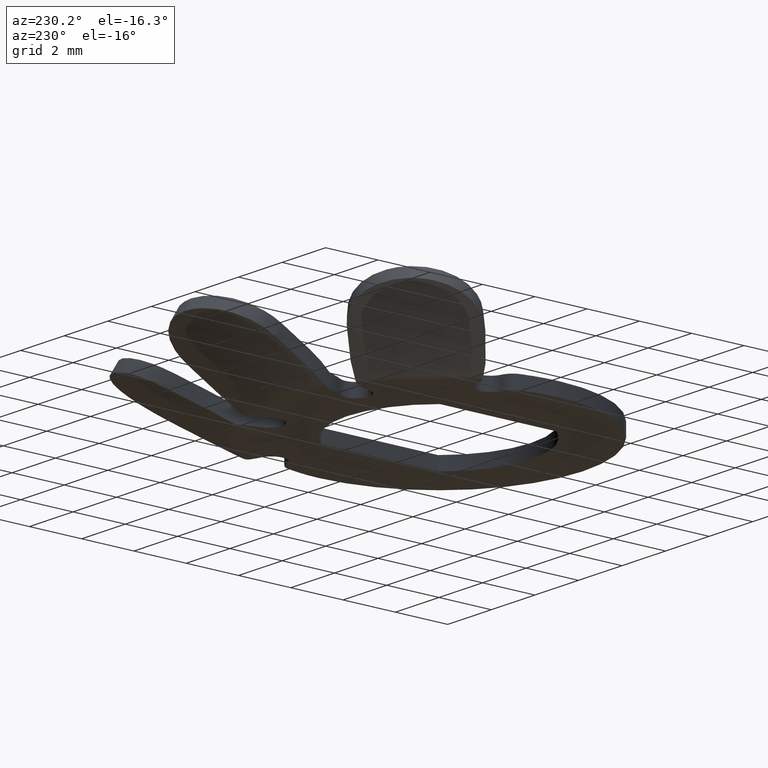
[diagram: clean part render]
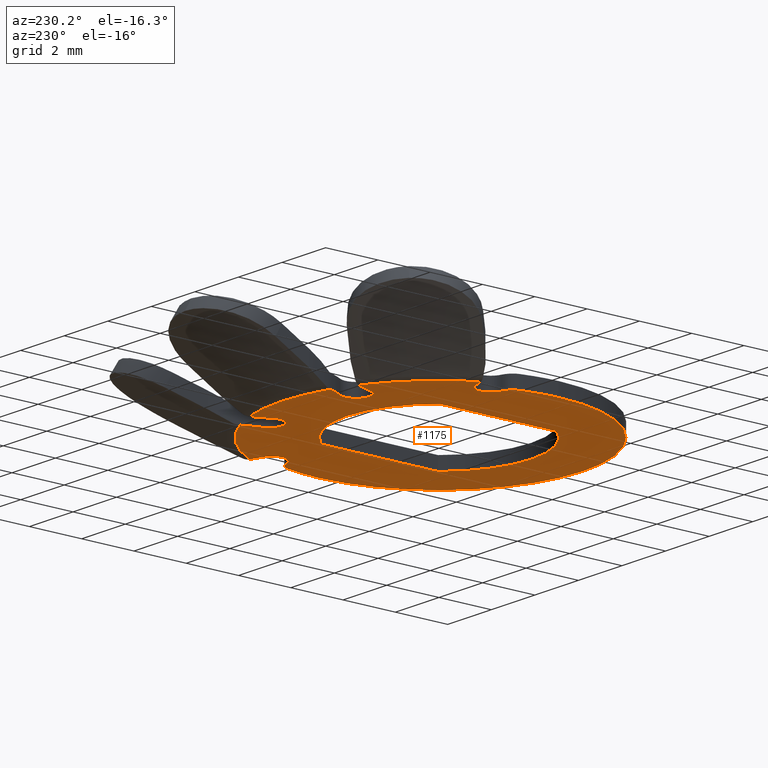
[diagram: same view with one face highlighted and labeled with its STEP entity id]
A machine part, auxiliary view. The second image highlights one B-rep face of the part: STEP entity #1175.
In plain terms, the highlighted planar face has unit normal (0, 0, 1).
Its self-contained STEP definition (entity closure, byte-faithful):
#1 = CIRCLE ( 'NONE', #484, 0.5000000000000000000 ) ;
#28 = DIRECTION ( 'NONE',  ( 1.000000000000000000, 0.0000000000000000000, 0.0000000000000000000 ) ) ;
#43 = CARTESIAN_POINT ( 'NONE',  ( 2.000000000000000900, 4.828427124746181000, 0.0000000000000000000 ) ) ;
#47 = EDGE_CURVE ( 'NONE', #1611, #213, #1660, .T. ) ;
#48 = CARTESIAN_POINT ( 'NONE',  ( 2.485153603136834600, 4.707489201151687100, 0.0000000000000000000 ) ) ;
#53 = CIRCLE ( 'NONE', #239, 0.5000000000000002200 ) ;
#57 = AXIS2_PLACEMENT_3D ( 'NONE', #1031, #241, #1167 ) ;
#73 = LINE ( 'NONE', #1075, #1362 ) ;
#83 = CARTESIAN_POINT ( 'NONE',  ( 0.0000000000000000000, 0.0000000000000000000, 0.0000000000000000000 ) ) ;
#122 = VERTEX_POINT ( 'NONE', #1547 ) ;
#130 = CARTESIAN_POINT ( 'NONE',  ( 1.500000000000000900, 4.828427124746181000, 0.0000000000000000000 ) ) ;
#133 = DIRECTION ( 'NONE',  ( 0.0000000000000000000, 0.0000000000000000000, -1.000000000000000000 ) ) ;
#144 = ORIENTED_EDGE ( 'NONE', *, *, #1695, .T. ) ;
#166 = VERTEX_POINT ( 'NONE', #279 ) ;
#168 = CARTESIAN_POINT ( 'NONE',  ( -5.297832606445729700, 2.816552799803404600, 0.0000000000000000000 ) ) ;
#181 = CIRCLE ( 'NONE', #1429, 3.000000000000000000 ) ;
#182 = AXIS2_PLACEMENT_3D ( 'NONE', #1173, #650, #1732 ) ;
#184 = DIRECTION ( 'NONE',  ( 1.000000000000000000, 0.0000000000000000000, 0.0000000000000000000 ) ) ;
#188 = ORIENTED_EDGE ( 'NONE', *, *, #625, .T. ) ;
#207 = CIRCLE ( 'NONE', #1219, 0.5000000000000004400 ) ;
#213 = VERTEX_POINT ( 'NONE', #168 ) ;
#222 = CIRCLE ( 'NONE', #968, 0.5000000000000004400 ) ;
#224 = AXIS2_PLACEMENT_3D ( 'NONE', #389, #1257, #506 ) ;
#229 = CARTESIAN_POINT ( 'NONE',  ( -1.571428571428572100, 5.085966501565037500, 0.0000000000000000000 ) ) ;
#231 = EDGE_CURVE ( 'NONE', #1433, #1227, #826, .T. ) ;
#232 = VERTEX_POINT ( 'NONE', #130 ) ;
#239 = AXIS2_PLACEMENT_3D ( 'NONE', #250, #1179, #381 ) ;
#241 = DIRECTION ( 'NONE',  ( -0.0000000000000000000, -0.0000000000000000000, -1.000000000000000000 ) ) ;
#245 = ORIENTED_EDGE ( 'NONE', *, *, #743, .T. ) ;
#250 = CARTESIAN_POINT ( 'NONE',  ( -2.000000000000000900, 4.828427124746181000, 0.0000000000000000000 ) ) ;
#253 = AXIS2_PLACEMENT_3D ( 'NONE', #1725, #666, #1591 ) ;
#256 = CARTESIAN_POINT ( 'NONE',  ( -4.916119825325959700, 2.693784227311108100, 0.0000000000000000000 ) ) ;
#269 = VERTEX_POINT ( 'NONE', #1456 ) ;
#276 = DIRECTION ( 'NONE',  ( 0.0000000000000000000, 0.0000000000000000000, -1.000000000000000000 ) ) ;
#277 = CARTESIAN_POINT ( 'NONE',  ( 0.0000000000000000000, 0.0000000000000000000, 0.0000000000000000000 ) ) ;
#279 = CARTESIAN_POINT ( 'NONE',  ( -5.500000000000000000, 0.0000000000000000000, 0.0000000000000000000 ) ) ;
#282 = ORIENTED_EDGE ( 'NONE', *, *, #1468, .T. ) ;
#286 = CARTESIAN_POINT ( 'NONE',  ( -5.037057748920452700, 2.208630624174273500, 0.0000000000000000000 ) ) ;
#290 = EDGE_CURVE ( 'NONE', #646, #478, #73, .T. ) ;
#296 = ORIENTED_EDGE ( 'NONE', *, *, #462, .T. ) ;
#318 = CARTESIAN_POINT ( 'NONE',  ( 4.847153064532835600, 1.226828092680439800, 0.0000000000000000000 ) ) ;
#339 = DIRECTION ( 'NONE',  ( 0.0000000000000000000, 0.0000000000000000000, -1.000000000000000000 ) ) ;
#343 = CIRCLE ( 'NONE', #615, 0.5000000000000004400 ) ;
#364 = CIRCLE ( 'NONE', #416, 5.999999999999995600 ) ;
#369 = EDGE_CURVE ( 'NONE', #1165, #1036, #343, .T. ) ;
#376 = PLANE ( 'NONE',  #182 ) ;
#381 = DIRECTION ( 'NONE',  ( 1.000000000000000000, 0.0000000000000000000, 0.0000000000000000000 ) ) ;
#389 = CARTESIAN_POINT ( 'NONE',  ( 0.0000000000000000000, 0.0000000000000000000, 0.0000000000000000000 ) ) ;
#392 = DIRECTION ( 'NONE',  ( 1.000000000000000000, 0.0000000000000000000, 0.0000000000000000000 ) ) ;
#406 = CARTESIAN_POINT ( 'NONE',  ( -2.725000000000000100, -2.236067977499789800, 0.0000000000000000000 ) ) ;
#407 = DIRECTION ( 'NONE',  ( -1.000000000000000000, 0.0000000000000000000, 0.0000000000000000000 ) ) ;
#408 = EDGE_CURVE ( 'NONE', #478, #1472, #1682, .T. ) ;
#412 = DIRECTION ( 'NONE',  ( 0.0000000000000000000, 0.0000000000000000000, 1.000000000000000000 ) ) ;
#416 = AXIS2_PLACEMENT_3D ( 'NONE', #937, #133, #1059 ) ;
#417 = VERTEX_POINT ( 'NONE', #48 ) ;
#425 = CIRCLE ( 'NONE', #1680, 0.5000000000000004400 ) ;
#436 = ORIENTED_EDGE ( 'NONE', *, *, #1027, .T. ) ;
#444 = DIRECTION ( 'NONE',  ( 1.000000000000000000, 4.336808689942013800E-015, 0.0000000000000000000 ) ) ;
#460 = EDGE_CURVE ( 'NONE', #731, #1495, #222, .T. ) ;
#462 = EDGE_CURVE ( 'NONE', #1536, #781, #929, .T. ) ;
#476 = ORIENTED_EDGE ( 'NONE', *, *, #47, .T. ) ;
#478 = VERTEX_POINT ( 'NONE', #1405 ) ;
#481 = AXIS2_PLACEMENT_3D ( 'NONE', #820, #276, #1092 ) ;
#484 = AXIS2_PLACEMENT_3D ( 'NONE', #1711, #1390, #636 ) ;
#500 = CARTESIAN_POINT ( 'NONE',  ( 4.942105406726650300, 1.717729358427336800, 0.0000000000000000000 ) ) ;
#506 = DIRECTION ( 'NONE',  ( -1.000000000000000000, 0.0000000000000000000, 0.0000000000000000000 ) ) ;
#556 = EDGE_CURVE ( 'NONE', #1036, #1134, #1464, .T. ) ;
#567 = DIRECTION ( 'NONE',  ( 0.0000000000000000000, 0.0000000000000000000, 1.000000000000000000 ) ) ;
#572 = CIRCLE ( 'NONE', #932, 0.5000000000000000000 ) ;
#573 = ORIENTED_EDGE ( 'NONE', *, *, #1451, .T. ) ;
#586 = VERTEX_POINT ( 'NONE', #1448 ) ;
#589 = ORIENTED_EDGE ( 'NONE', *, *, #1025, .T. ) ;
#592 = EDGE_CURVE ( 'NONE', #213, #586, #1424, .T. ) ;
#598 = CARTESIAN_POINT ( 'NONE',  ( 5.396075221957837600, 3.981861659584724900, 0.0000000000000000000 ) ) ;
#599 = DIRECTION ( 'NONE',  ( 0.0000000000000000000, 0.0000000000000000000, 1.000000000000000000 ) ) ;
#611 = CARTESIAN_POINT ( 'NONE',  ( 0.9999999999999993300, 6.631202762478175700, 0.0000000000000000000 ) ) ;
#615 = AXIS2_PLACEMENT_3D ( 'NONE', #318, #1245, #444 ) ;
#625 = EDGE_CURVE ( 'NONE', #232, #417, #1, .T. ) ;
#627 = CARTESIAN_POINT ( 'NONE',  ( 0.0000000000000000000, 0.0000000000000000000, 0.0000000000000000000 ) ) ;
#636 = DIRECTION ( 'NONE',  ( 1.000000000000000000, 0.0000000000000000000, 0.0000000000000000000 ) ) ;
#637 = CARTESIAN_POINT ( 'NONE',  ( -0.9999999999999993300, 6.631202762478175700, 0.0000000000000000000 ) ) ;
#646 = VERTEX_POINT ( 'NONE', #1180 ) ;
#650 = DIRECTION ( 'NONE',  ( 0.0000000000000000000, -0.0000000000000000000, 1.000000000000000000 ) ) ;
#657 = VECTOR ( 'NONE', #1330, 1000.000000000000000 ) ;
#666 = DIRECTION ( 'NONE',  ( 0.0000000000000000000, 0.0000000000000000000, -1.000000000000000000 ) ) ;
#683 = CARTESIAN_POINT ( 'NONE',  ( -5.331868370986111200, 1.349510901948521000, 0.0000000000000000000 ) ) ;
#687 = DIRECTION ( 'NONE',  ( -0.0000000000000000000, 1.000000000000000000, -0.0000000000000000000 ) ) ;
#697 = VERTEX_POINT ( 'NONE', #1226 ) ;
#731 = VERTEX_POINT ( 'NONE', #683 ) ;
#735 = AXIS2_PLACEMENT_3D ( 'NONE', #1155, #1190, #392 ) ;
#743 = EDGE_CURVE ( 'NONE', #781, #269, #989, .T. ) ;
#753 = DIRECTION ( 'NONE',  ( 1.000000000000000000, 0.0000000000000000000, 0.0000000000000000000 ) ) ;
#757 = DIRECTION ( 'NONE',  ( -1.000000000000000000, 0.0000000000000000000, 0.0000000000000000000 ) ) ;
#767 = CARTESIAN_POINT ( 'NONE',  ( 0.0000000000000000000, 0.0000000000000000000, 0.0000000000000000000 ) ) ;
#781 = VERTEX_POINT ( 'NONE', #1356 ) ;
#807 = CIRCLE ( 'NONE', #1609, 5.500000000000000000 ) ;
#818 = EDGE_CURVE ( 'NONE', #417, #122, #909, .T. ) ;
#820 = CARTESIAN_POINT ( 'NONE',  ( -5.396075221957837600, 3.981861659584725800, 0.0000000000000000000 ) ) ;
#826 = CIRCLE ( 'NONE', #253, 3.000000000000000000 ) ;
#832 = CARTESIAN_POINT ( 'NONE',  ( 5.331868370986120100, 1.349510901948484100, 0.0000000000000000000 ) ) ;
#841 = EDGE_CURVE ( 'NONE', #1495, #1611, #1523, .T. ) ;
#849 = CARTESIAN_POINT ( 'NONE',  ( 5.500000000000000000, 6.735557395310442000E-016, 0.0000000000000000000 ) ) ;
#883 = ORIENTED_EDGE ( 'NONE', *, *, #1566, .T. ) ;
#884 = AXIS2_PLACEMENT_3D ( 'NONE', #1393, #599, #1518 ) ;
#897 = DIRECTION ( 'NONE',  ( 1.000000000000000000, 0.0000000000000000000, 0.0000000000000000000 ) ) ;
#909 = CIRCLE ( 'NONE', #1409, 2.999999999999999100 ) ;
#929 = CIRCLE ( 'NONE', #1320, 3.000000000000000000 ) ;
#932 = AXIS2_PLACEMENT_3D ( 'NONE', #43, #1653, #1106 ) ;
#937 = CARTESIAN_POINT ( 'NONE',  ( 0.0000000000000000000, 0.0000000000000000000, 0.0000000000000000000 ) ) ;
#944 = EDGE_CURVE ( 'NONE', #1227, #1533, #425, .T. ) ;
#960 = ORIENTED_EDGE ( 'NONE', *, *, #818, .T. ) ;
#968 = AXIS2_PLACEMENT_3D ( 'NONE', #1135, #339, #1267 ) ;
#989 = CIRCLE ( 'NONE', #1143, 5.999999999999995600 ) ;
#1002 = CARTESIAN_POINT ( 'NONE',  ( -2.725000000000000100, 2.236067977499789800, 0.0000000000000000000 ) ) ;
#1017 = CARTESIAN_POINT ( 'NONE',  ( -4.942105406726639700, 1.717729358427372300, 0.0000000000000000000 ) ) ;
#1025 = EDGE_CURVE ( 'NONE', #586, #697, #1715, .T. ) ;
#1027 = EDGE_CURVE ( 'NONE', #1472, #1477, #1360, .T. ) ;
#1031 = CARTESIAN_POINT ( 'NONE',  ( 0.0000000000000000000, 0.0000000000000000000, 0.0000000000000000000 ) ) ;
#1035 = AXIS2_PLACEMENT_3D ( 'NONE', #277, #1202, #407 ) ;
#1036 = VERTEX_POINT ( 'NONE', #832 ) ;
#1059 = DIRECTION ( 'NONE',  ( 1.000000000000000000, 1.776356839400250500E-015, 0.0000000000000000000 ) ) ;
#1075 = CARTESIAN_POINT ( 'NONE',  ( 2.725000000000000100, 2.236067977499789800, 0.0000000000000000000 ) ) ;
#1092 = DIRECTION ( 'NONE',  ( 1.000000000000000000, 0.0000000000000000000, 0.0000000000000000000 ) ) ;
#1102 = CARTESIAN_POINT ( 'NONE',  ( 5.297832606445749300, 2.816552799803366800, 0.0000000000000000000 ) ) ;
#1106 = DIRECTION ( 'NONE',  ( 1.000000000000000000, 0.0000000000000000000, 0.0000000000000000000 ) ) ;
#1121 = EDGE_CURVE ( 'NONE', #1643, #232, #572, .T. ) ;
#1134 = VERTEX_POINT ( 'NONE', #849 ) ;
#1135 = CARTESIAN_POINT ( 'NONE',  ( -4.847153064532826700, 1.226828092680473300, 0.0000000000000000000 ) ) ;
#1142 = FACE_BOUND ( 'NONE', #1319, .T. ) ;
#1143 = AXIS2_PLACEMENT_3D ( 'NONE', #83, #1539, #184 ) ;
#1155 = CARTESIAN_POINT ( 'NONE',  ( -4.190492283758999300, 5.604705846132111100, 0.0000000000000000000 ) ) ;
#1165 = VERTEX_POINT ( 'NONE', #500 ) ;
#1167 = DIRECTION ( 'NONE',  ( -1.000000000000000000, 0.0000000000000000000, 0.0000000000000000000 ) ) ;
#1173 = CARTESIAN_POINT ( 'NONE',  ( 0.0000000000000000000, 0.0000000000000000000, 0.0000000000000000000 ) ) ;
#1175 = ADVANCED_FACE ( 'NONE', ( #1191, #1142 ), #376, .F. ) ;
#1179 = DIRECTION ( 'NONE',  ( 0.0000000000000000000, 0.0000000000000000000, 1.000000000000000000 ) ) ;
#1180 = CARTESIAN_POINT ( 'NONE',  ( 2.725000000000000100, -2.236067977499789800, 0.0000000000000000000 ) ) ;
#1190 = DIRECTION ( 'NONE',  ( 0.0000000000000000000, 0.0000000000000000000, -1.000000000000000000 ) ) ;
#1191 = FACE_OUTER_BOUND ( 'NONE', #1372, .T. ) ;
#1200 = CIRCLE ( 'NONE', #57, 5.500000000000000000 ) ;
#1202 = DIRECTION ( 'NONE',  ( 0.0000000000000000000, 0.0000000000000000000, 1.000000000000000000 ) ) ;
#1212 = CARTESIAN_POINT ( 'NONE',  ( 5.037057748920466000, 2.208630624174237500, 0.0000000000000000000 ) ) ;
#1219 = AXIS2_PLACEMENT_3D ( 'NONE', #1212, #412, #1344 ) ;
#1226 = CARTESIAN_POINT ( 'NONE',  ( -2.485153603136835100, 4.707489201151688000, 0.0000000000000000000 ) ) ;
#1227 = VERTEX_POINT ( 'NONE', #1355 ) ;
#1245 = DIRECTION ( 'NONE',  ( 0.0000000000000000000, 0.0000000000000000000, -1.000000000000000000 ) ) ;
#1250 = ORIENTED_EDGE ( 'NONE', *, *, #408, .T. ) ;
#1257 = DIRECTION ( 'NONE',  ( -0.0000000000000000000, -0.0000000000000000000, -1.000000000000000000 ) ) ;
#1267 = DIRECTION ( 'NONE',  ( 1.000000000000000000, -3.469446951953611000E-015, 0.0000000000000000000 ) ) ;
#1277 = DIRECTION ( 'NONE',  ( 0.0000000000000000000, 0.0000000000000000000, -1.000000000000000000 ) ) ;
#1296 = CARTESIAN_POINT ( 'NONE',  ( 4.537057748920465100, 2.208630624174237500, 0.0000000000000000000 ) ) ;
#1319 = EDGE_LOOP ( 'NONE', ( #1250, #436, #1730, #1671 ) ) ;
#1320 = AXIS2_PLACEMENT_3D ( 'NONE', #611, #1277, #753 ) ;
#1330 = DIRECTION ( 'NONE',  ( -0.0000000000000000000, -1.000000000000000000, -0.0000000000000000000 ) ) ;
#1344 = DIRECTION ( 'NONE',  ( 1.000000000000000000, 0.0000000000000000000, 0.0000000000000000000 ) ) ;
#1350 = ORIENTED_EDGE ( 'NONE', *, *, #592, .T. ) ;
#1355 = CARTESIAN_POINT ( 'NONE',  ( 4.916119825325975700, 2.693784227311073000, 0.0000000000000000000 ) ) ;
#1356 = CARTESIAN_POINT ( 'NONE',  ( -1.853900533295274000, 5.706404543374702600, 0.0000000000000000000 ) ) ;
#1360 = LINE ( 'NONE', #406, #657 ) ;
#1362 = VECTOR ( 'NONE', #687, 1000.000000000000000 ) ;
#1372 = EDGE_LOOP ( 'NONE', ( #960, #1401, #1647, #1629, #144, #1417, #1709, #282, #1599, #1668, #1453, #476, #1350, #589, #883, #296, #245, #573, #1557, #188 ) ) ;
#1390 = DIRECTION ( 'NONE',  ( 0.0000000000000000000, 0.0000000000000000000, 1.000000000000000000 ) ) ;
#1393 = CARTESIAN_POINT ( 'NONE',  ( 0.0000000000000000000, 0.0000000000000000000, 0.0000000000000000000 ) ) ;
#1394 = CIRCLE ( 'NONE', #1035, 3.524999999999999900 ) ;
#1401 = ORIENTED_EDGE ( 'NONE', *, *, #1654, .T. ) ;
#1405 = CARTESIAN_POINT ( 'NONE',  ( 2.725000000000000100, 2.236067977499789800, 0.0000000000000000000 ) ) ;
#1409 = AXIS2_PLACEMENT_3D ( 'NONE', #598, #1502, #1413 ) ;
#1413 = DIRECTION ( 'NONE',  ( 1.000000000000000000, -7.228014483236698300E-015, 0.0000000000000000000 ) ) ;
#1417 = ORIENTED_EDGE ( 'NONE', *, *, #369, .T. ) ;
#1418 = CARTESIAN_POINT ( 'NONE',  ( -2.724999999999998300, -2.236067977499791600, 0.0000000000000000000 ) ) ;
#1424 = CIRCLE ( 'NONE', #1686, 5.999999999999995600 ) ;
#1429 = AXIS2_PLACEMENT_3D ( 'NONE', #637, #1439, #1538 ) ;
#1433 = VERTEX_POINT ( 'NONE', #1102 ) ;
#1439 = DIRECTION ( 'NONE',  ( 0.0000000000000000000, 0.0000000000000000000, -1.000000000000000000 ) ) ;
#1448 = CARTESIAN_POINT ( 'NONE',  ( -2.724131710075540900, 5.345942987552416700, 0.0000000000000000000 ) ) ;
#1451 = EDGE_CURVE ( 'NONE', #269, #1643, #181, .T. ) ;
#1453 = ORIENTED_EDGE ( 'NONE', *, *, #841, .T. ) ;
#1456 = CARTESIAN_POINT ( 'NONE',  ( 1.853900533295274000, 5.706404543374702600, 0.0000000000000000000 ) ) ;
#1464 = CIRCLE ( 'NONE', #224, 5.500000000000000000 ) ;
#1468 = EDGE_CURVE ( 'NONE', #1134, #166, #807, .T. ) ;
#1470 = DIRECTION ( 'NONE',  ( 0.0000000000000000000, 0.0000000000000000000, 1.000000000000000000 ) ) ;
#1472 = VERTEX_POINT ( 'NONE', #1002 ) ;
#1477 = VERTEX_POINT ( 'NONE', #1418 ) ;
#1495 = VERTEX_POINT ( 'NONE', #1017 ) ;
#1502 = DIRECTION ( 'NONE',  ( 0.0000000000000000000, 0.0000000000000000000, -1.000000000000000000 ) ) ;
#1518 = DIRECTION ( 'NONE',  ( -1.000000000000000000, 0.0000000000000000000, 0.0000000000000000000 ) ) ;
#1523 = CIRCLE ( 'NONE', #1582, 0.5000000000000004400 ) ;
#1524 = EDGE_CURVE ( 'NONE', #166, #731, #1200, .T. ) ;
#1530 = DIRECTION ( 'NONE',  ( 1.000000000000000000, 0.0000000000000000000, 0.0000000000000000000 ) ) ;
#1533 = VERTEX_POINT ( 'NONE', #1296 ) ;
#1536 = VERTEX_POINT ( 'NONE', #229 ) ;
#1538 = DIRECTION ( 'NONE',  ( 1.000000000000000000, 0.0000000000000000000, 0.0000000000000000000 ) ) ;
#1539 = DIRECTION ( 'NONE',  ( 0.0000000000000000000, 0.0000000000000000000, -1.000000000000000000 ) ) ;
#1547 = CARTESIAN_POINT ( 'NONE',  ( 2.724131710075541300, 5.345942987552416700, 0.0000000000000000000 ) ) ;
#1550 = DIRECTION ( 'NONE',  ( -0.0000000000000000000, -0.0000000000000000000, -1.000000000000000000 ) ) ;
#1557 = ORIENTED_EDGE ( 'NONE', *, *, #1121, .T. ) ;
#1558 = DIRECTION ( 'NONE',  ( 0.0000000000000000000, 0.0000000000000000000, -1.000000000000000000 ) ) ;
#1566 = EDGE_CURVE ( 'NONE', #697, #1536, #53, .T. ) ;
#1582 = AXIS2_PLACEMENT_3D ( 'NONE', #286, #1470, #1530 ) ;
#1583 = CARTESIAN_POINT ( 'NONE',  ( 1.571428571428572500, 5.085966501565037500, 0.0000000000000000000 ) ) ;
#1591 = DIRECTION ( 'NONE',  ( 1.000000000000000000, 0.0000000000000000000, 0.0000000000000000000 ) ) ;
#1599 = ORIENTED_EDGE ( 'NONE', *, *, #1524, .T. ) ;
#1609 = AXIS2_PLACEMENT_3D ( 'NONE', #627, #1550, #757 ) ;
#1611 = VERTEX_POINT ( 'NONE', #256 ) ;
#1616 = CARTESIAN_POINT ( 'NONE',  ( 5.037057748920466000, 2.208630624174237500, 0.0000000000000000000 ) ) ;
#1629 = ORIENTED_EDGE ( 'NONE', *, *, #944, .T. ) ;
#1643 = VERTEX_POINT ( 'NONE', #1583 ) ;
#1647 = ORIENTED_EDGE ( 'NONE', *, *, #231, .T. ) ;
#1653 = DIRECTION ( 'NONE',  ( 0.0000000000000000000, 0.0000000000000000000, 1.000000000000000000 ) ) ;
#1654 = EDGE_CURVE ( 'NONE', #122, #1433, #364, .T. ) ;
#1660 = CIRCLE ( 'NONE', #735, 3.000000000000000000 ) ;
#1662 = EDGE_CURVE ( 'NONE', #1477, #646, #1394, .T. ) ;
#1668 = ORIENTED_EDGE ( 'NONE', *, *, #460, .T. ) ;
#1671 = ORIENTED_EDGE ( 'NONE', *, *, #290, .T. ) ;
#1680 = AXIS2_PLACEMENT_3D ( 'NONE', #1616, #567, #28 ) ;
#1682 = CIRCLE ( 'NONE', #884, 3.524999999999999900 ) ;
#1686 = AXIS2_PLACEMENT_3D ( 'NONE', #767, #1558, #897 ) ;
#1695 = EDGE_CURVE ( 'NONE', #1533, #1165, #207, .T. ) ;
#1709 = ORIENTED_EDGE ( 'NONE', *, *, #556, .T. ) ;
#1711 = CARTESIAN_POINT ( 'NONE',  ( 2.000000000000000900, 4.828427124746181000, 0.0000000000000000000 ) ) ;
#1715 = CIRCLE ( 'NONE', #481, 3.000000000000000000 ) ;
#1725 = CARTESIAN_POINT ( 'NONE',  ( 4.190492283759036600, 5.604705846132080900, 0.0000000000000000000 ) ) ;
#1730 = ORIENTED_EDGE ( 'NONE', *, *, #1662, .T. ) ;
#1732 = DIRECTION ( 'NONE',  ( 1.000000000000000000, 0.0000000000000000000, 0.0000000000000000000 ) ) ;